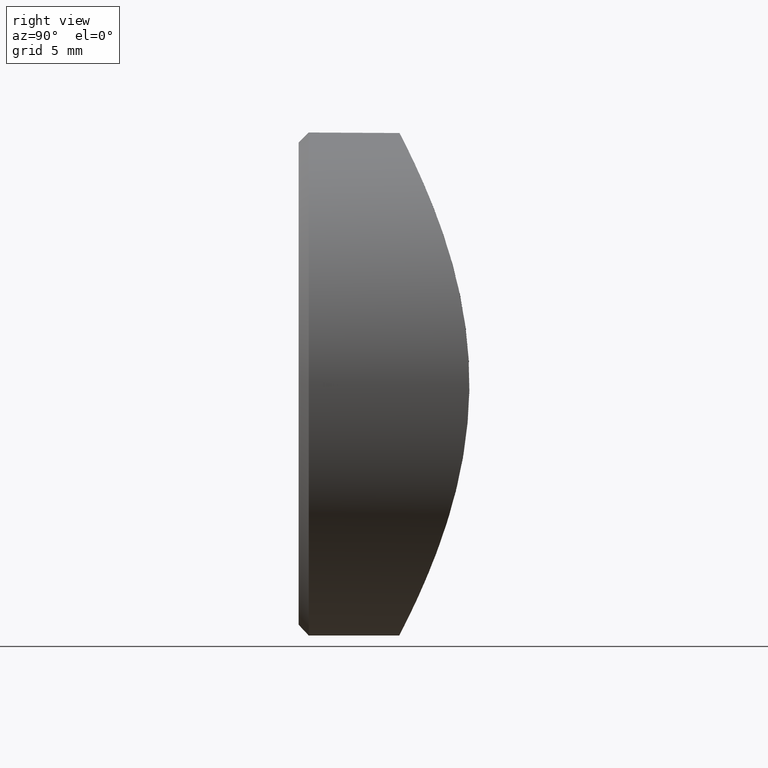
[diagram: clean part render]
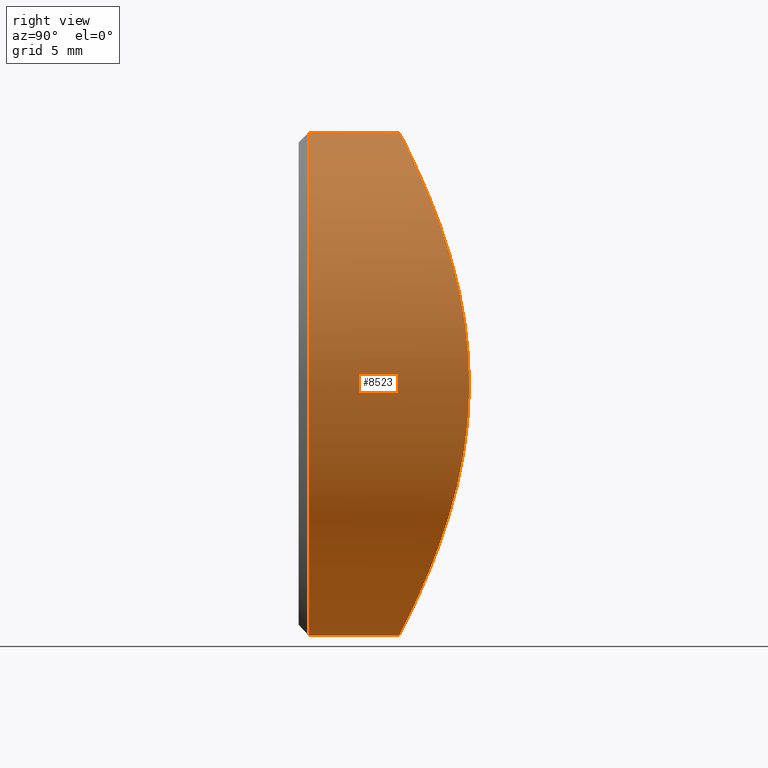
[diagram: same view with one face highlighted and labeled with its STEP entity id]
A machine part, right view. The second image highlights one B-rep face of the part: STEP entity #8523.
In plain terms, the highlighted cylindrical surface (bore or boss wall) has radius 12.5 mm, axis along (-0, -1, -0).
Its self-contained STEP definition (entity closure, byte-faithful):
#16 = CARTESIAN_POINT ( 'NONE',  ( -12.33897836552499427, 8.389917376965435380, -2.042544866178408469 ) ) ;
#370 = CARTESIAN_POINT ( 'NONE',  ( 12.07568711241505000, 8.235425785179563363, 3.255345404598887438 ) ) ;
#412 = CARTESIAN_POINT ( 'NONE',  ( 9.394847521644637212, 6.900573235167552610, -8.255202184159767143 ) ) ;
#452 = CARTESIAN_POINT ( 'NONE',  ( 2.880084786186519530, 5.168903019523318321, -12.17068015586779595 ) ) ;
#496 = CARTESIAN_POINT ( 'NONE',  ( 8.560607551957430061, 6.566139820617232559, -9.117340885081235413 ) ) ;
#766 = CARTESIAN_POINT ( 'NONE',  ( -11.83278988928865338, 8.094459033048021723, 4.109907718995606807 ) ) ;
#905 = CARTESIAN_POINT ( 'NONE',  ( -4.099037510848092758, 5.338037563784588713, -11.83695617156265989 ) ) ;
#993 = CARTESIAN_POINT ( 'NONE',  ( -11.85457163419842885, 8.106690732645331465, -4.048891219634841221 ) ) ;
#1145 = ORIENTED_EDGE ( 'NONE', *, *, #6163, .T. ) ;
#1285 = CARTESIAN_POINT ( 'NONE',  ( 0.8416139926660892723, 4.999999999999997335, -12.49999999999999822 ) ) ;
#1331 = CARTESIAN_POINT ( 'NONE',  ( 11.83531592272857402, 8.098469632034195342, 4.042869024516796195 ) ) ;
#1373 = AXIS2_PLACEMENT_3D ( 'NONE', #3110, #7761, #4872 ) ;
#1376 = CARTESIAN_POINT ( 'NONE',  ( 12.50105946675681068, 8.487328007451255374, 0.3829992845280627556 ) ) ;
#1424 = CARTESIAN_POINT ( 'NONE',  ( 12.16623829432023030, 8.288210147253527893, -2.898783021241126523 ) ) ;
#1797 = CARTESIAN_POINT ( 'NONE',  ( -0.4208069963330480223, 4.999999999999998224, -12.50000000000000533 ) ) ;
#1846 = CARTESIAN_POINT ( 'NONE',  ( -12.32893162694468181, 8.383935725384871418, 2.102821018098289585 ) ) ;
#1892 = CARTESIAN_POINT ( 'NONE',  ( -10.81973109692051693, 7.558276606120126750, -6.272818569617448325 ) ) ;
#1934 = CARTESIAN_POINT ( 'NONE',  ( -7.670003217709702170, 6.239676964406394966, -9.903237437807757004 ) ) ;
#2254 = CARTESIAN_POINT ( 'NONE',  ( 11.67831068887509893, 8.010663022005205747, -4.475638660923362266 ) ) ;
#2292 = CARTESIAN_POINT ( 'NONE',  ( 4.073928212782698566, 5.342718500147014993, -11.82477579534295842 ) ) ;
#2339 = CARTESIAN_POINT ( 'NONE',  ( 11.81847010116291941, 8.088992777373846366, -4.091992984200398809 ) ) ;
#2378 = CARTESIAN_POINT ( 'NONE',  ( 10.82438516625332703, 7.555926955366533804, -6.303536818163581579 ) ) ;
#2419 = CARTESIAN_POINT ( 'NONE',  ( 9.412192866964700144, 6.907903693207503082, 8.235475087461976429 ) ) ;
#2534 = CARTESIAN_POINT ( 'NONE',  ( -11.36069409278679920, 7.838285258480948592, 5.229597903835155215 ) ) ;
#2708 = FACE_OUTER_BOUND ( 'NONE', #3982, .T. ) ;
#2732 = DIRECTION ( 'NONE',  ( 0.000000000000000000, 0.000000000000000000, -1.000000000000000000 ) ) ;
#2782 = VERTEX_POINT ( 'NONE', #12098 ) ;
#2792 = CARTESIAN_POINT ( 'NONE',  ( -12.39229586063315303, 8.421856189825291494, 1.689128689021134111 ) ) ;
#2833 = CARTESIAN_POINT ( 'NONE',  ( -10.61159664689884430, 7.454884040471547735, -6.618618285412101621 ) ) ;
#2863 = CARTESIAN_POINT ( 'NONE',  ( 0.000000000000000000, 12.00000000000000000, 0.000000000000000000 ) ) ;
#2873 = CARTESIAN_POINT ( 'NONE',  ( -12.50113647660907645, 8.487374592744735935, -0.3784457863119105592 ) ) ;
#2913 = B_SPLINE_CURVE_WITH_KNOTS ( 'NONE', 3,
 ( #10902, #1285, #11966, #452, #10103, #2292, #4213, #9002, #7226, #5219, #4300, #8054, #496, #6186, #412, #3332, #11068, #2378, #8095, #2254, #2339, #12044, #1424, #9047, #3245, #1376, #11028, #7183, #8139, #11918, #370, #1331, #6269, #7137, #9089, #3376, #4340, #2419, #5303, #8963, #7266, #9972, #8013, #3205, #9928, #12007, #6104, #10060, #10945, #5129, #5259, #3291, #10019, #5176, #11869, #7092, #6231, #6147, #4256, #8176, #8793, #9250, #5633, #10725, #2534, #766, #2917, #1846, #2792, #10485, #4786, #2873, #8570, #5680, #16, #8704, #993, #8660, #12416, #1892, #2833, #8613, #12454, #9552, #5720, #10524, #1934, #4748, #11490, #3866, #6693, #905, #7771, #5810, #4831, #9676, #1797, #9591 ),
 .UNSPECIFIED., .T., .F.,
 ( 4, 2, 2, 2, 2, 2, 2, 2, 2, 2, 2, 2, 2, 2, 2, 2, 2, 2, 2, 2, 2, 2, 2, 2, 2, 2, 2, 2, 2, 2, 2, 2, 2, 2, 2, 2, 2, 2, 2, 2, 2, 2, 2, 2, 2, 2, 2, 2, 4 ),
 ( 0.000000000000000000, 0.002486133216992820159, 0.003729199825489230239, 0.004972266433985641186, 0.007458399650978464815, 0.008701466259474875328, 0.009944532867971284107, 0.01118759947646769462, 0.01243066608496410687, 0.01491679930195692963, 0.01615986591045334014, 0.01740293251894975413, 0.01988906573594257862, 0.02113213234443898914, 0.02237519895293539618, 0.02361826556143181363, 0.02486133216992822761, 0.02734746538692104864, 0.02859053199541746609, 0.02983359860391388008, 0.03231973182090670110, 0.03480586503789952213, 0.03604893164639592917, 0.03729199825489233622, 0.03977813147188516418, 0.04102119808038157817, 0.04226426468887798521, 0.04475039790587079930, 0.04723653112286362726, 0.04972266433985644829, 0.05220879755684926932, 0.05345186416534568330, 0.05469493077384208340, 0.05718106399083491137, 0.05842413059933132535, 0.05966719720782773240, 0.06091026381632414638, 0.06215333042482056036, 0.06463946364181337445, 0.06588253025030978149, 0.06712559685880618854, 0.06836866346730260946, 0.06961173007579901650, 0.07209786329279184447, 0.07334092990128825151, 0.07458399650978465856, 0.07707012972677748652, 0.07831319633527389357, 0.07955626294377031449 ),
 .UNSPECIFIED. ) ;
#2917 = CARTESIAN_POINT ( 'NONE',  ( -12.07716066025249901, 8.235827473606695648, 3.330140473100296816 ) ) ;
#3110 = CARTESIAN_POINT ( 'NONE',  ( 0.000000000000000000, 0.5000000000000091038, 0.000000000000000000 ) ) ;
#3205 = CARTESIAN_POINT ( 'NONE',  ( 4.493358900822062019, 5.418622160062162685, 11.67154270457320919 ) ) ;
#3245 = CARTESIAN_POINT ( 'NONE',  ( 12.49774924526883879, 8.485325542013120170, -0.8654298213824760388 ) ) ;
#3291 = CARTESIAN_POINT ( 'NONE',  ( -1.630651670391576991, 5.051473068477364770, 12.40031129654895814 ) ) ;
#3311 = FACE_OUTER_BOUND ( 'NONE', #3683, .T. ) ;
#3332 = CARTESIAN_POINT ( 'NONE',  ( 9.905737200678295551, 7.123277097359831167, -7.634650847773376547 ) ) ;
#3376 = CARTESIAN_POINT ( 'NONE',  ( 10.16551749499001112, 7.242316943920111605, 7.285275361540628047 ) ) ;
#3683 = EDGE_LOOP ( 'NONE', ( #1145 ) ) ;
#3866 = CARTESIAN_POINT ( 'NONE',  ( -5.595272729540675449, 5.654170961199794121, -11.18531521167290244 ) ) ;
#3982 = EDGE_LOOP ( 'NONE', ( #5458 ) ) ;
#4213 = CARTESIAN_POINT ( 'NONE',  ( 4.463086516404190185, 5.412866885085155566, -11.68324080886737981 ) ) ;
#4256 = CARTESIAN_POINT ( 'NONE',  ( -8.264077568507044447, 6.449786080185163861, 9.412695405477590427 ) ) ;
#4300 = CARTESIAN_POINT ( 'NONE',  ( 7.643601615584864284, 6.239174722017979846, -9.898850495652810721 ) ) ;
#4340 = CARTESIAN_POINT ( 'NONE',  ( 9.923142205795821624, 7.131111030546357199, 7.612074174934304160 ) ) ;
#4535 = CIRCLE ( 'NONE', #1373, 12.50000000000000000 ) ;
#4748 = CARTESIAN_POINT ( 'NONE',  ( -6.665751520387521722, 5.935508956533557701, -10.58210857748917277 ) ) ;
#4786 = CARTESIAN_POINT ( 'NONE',  ( -12.49876076068150610, 8.485937442637158767, 0.4501265013655099123 ) ) ;
#4831 = CARTESIAN_POINT ( 'NONE',  ( -1.676951933329633437, 5.054662766267060015, -12.39411511674444988 ) ) ;
#4872 = DIRECTION ( 'NONE',  ( 0.000000000000000000, 0.000000000000000000, 1.000000000000000000 ) ) ;
#5129 = CARTESIAN_POINT ( 'NONE',  ( -0.3758445865019366394, 4.999352973999016569, 12.50125005891698216 ) ) ;
#5176 = CARTESIAN_POINT ( 'NONE',  ( -3.260479979501064829, 5.207198239851062560, 12.09564845651103582 ) ) ;
#5219 = CARTESIAN_POINT ( 'NONE',  ( 7.317373504727926026, 6.132564767861670596, -10.14252889460935236 ) ) ;
#5259 = CARTESIAN_POINT ( 'NONE',  ( -0.7937935283653732021, 5.009413491511899075, 12.48185230467801610 ) ) ;
#5303 = CARTESIAN_POINT ( 'NONE',  ( 9.143358402556369668, 6.795727440652019169, 8.532821530365838569 ) ) ;
#5458 = ORIENTED_EDGE ( 'NONE', *, *, #6670, .T. ) ;
#5633 = CARTESIAN_POINT ( 'NONE',  ( -10.79939258952037306, 7.548087003693001229, 6.307741837057432299 ) ) ;
#5680 = CARTESIAN_POINT ( 'NONE',  ( -12.40093975770249735, 8.427031647108952583, -1.625193573246797030 ) ) ;
#5720 = CARTESIAN_POINT ( 'NONE',  ( -9.139284782924375961, 6.794035604485920921, -8.537292556855806680 ) ) ;
#5810 = CARTESIAN_POINT ( 'NONE',  ( -2.094311208364738608, 5.087493139575779644, -12.33032299215525818 ) ) ;
#6104 = CARTESIAN_POINT ( 'NONE',  ( 2.916893301379961834, 5.173294964805143614, 12.16203323285879989 ) ) ;
#6147 = CARTESIAN_POINT ( 'NONE',  ( -7.632636067880913089, 6.227161144243667401, 9.932055065716138387 ) ) ;
#6163 = EDGE_CURVE ( 'NONE', #2782, #2782, #4535, .T. ) ;
#6186 = CARTESIAN_POINT ( 'NONE',  ( 9.125846458580161524, 6.788567383216227213, -8.551539796307121577 ) ) ;
#6231 = CARTESIAN_POINT ( 'NONE',  ( -6.290458467577770385, 5.823109791072275776, 10.83203505537225197 ) ) ;
#6269 = CARTESIAN_POINT ( 'NONE',  ( 11.69463221032094857, 8.019683490822727023, 4.433206286189500744 ) ) ;
#6670 = EDGE_CURVE ( 'NONE', #8622, #8622, #2913, .T. ) ;
#6693 = CARTESIAN_POINT ( 'NONE',  ( -5.226925829154954961, 5.569307956056904096, -11.36202694756624432 ) ) ;
#7092 = CARTESIAN_POINT ( 'NONE',  ( -5.575696691962561680, 5.639556542823452645, 11.21809945721803814 ) ) ;
#7137 = CARTESIAN_POINT ( 'NONE',  ( 11.22171516179564321, 7.762517631140662289, 5.567231885764327259 ) ) ;
#7183 = CARTESIAN_POINT ( 'NONE',  ( 12.39939560149940156, 8.426106614345844292, 1.636956017459163748 ) ) ;
#7226 = CARTESIAN_POINT ( 'NONE',  ( 6.306957372526910355, 5.827480680796154999, -10.82273894371697409 ) ) ;
#7266 = CARTESIAN_POINT ( 'NONE',  ( 7.679687139352857628, 6.242732285119616975, 9.896326891067067422 ) ) ;
#7761 = DIRECTION ( 'NONE',  ( -0.000000000000000000, 1.000000000000000000, -0.000000000000000000 ) ) ;
#7771 = CARTESIAN_POINT ( 'NONE',  ( -3.316877259944496892, 5.214830716616150497, -12.08057711187187344 ) ) ;
#8013 = CARTESIAN_POINT ( 'NONE',  ( 5.616393516081349624, 5.649725587847339803, 11.19673421751230435 ) ) ;
#8054 = CARTESIAN_POINT ( 'NONE',  ( 8.264370655871719151, 6.455711329976480783, -9.386802674788903289 ) ) ;
#8095 = CARTESIAN_POINT ( 'NONE',  ( 11.20659804588977693, 7.754610452288820177, -5.596363829670500500 ) ) ;
#8139 = CARTESIAN_POINT ( 'NONE',  ( 12.33814508041329461, 8.389424442378361491, 2.047052564725868162 ) ) ;
#8176 = CARTESIAN_POINT ( 'NONE',  ( -9.399704287991015761, 6.896005990789429774, 8.278850895681333810 ) ) ;
#8523 = ADVANCED_FACE ( 'NONE', ( #3311, #2708 ), #10078, .T. ) ;
#8560 = DIRECTION ( 'NONE',  ( -0.000000000000000000, -1.000000000000000000, -0.000000000000000000 ) ) ;
#8570 = CARTESIAN_POINT ( 'NONE',  ( -12.48178325670625632, 8.475624290883709833, -0.7935034702485573854 ) ) ;
#8613 = CARTESIAN_POINT ( 'NONE',  ( -10.16369364889730242, 7.241477199381390228, -7.287758421890153215 ) ) ;
#8622 = VERTEX_POINT ( 'NONE', #10287 ) ;
#8660 = CARTESIAN_POINT ( 'NONE',  ( -11.38086847299331339, 7.849046002857148707, -5.185983993912958390 ) ) ;
#8704 = CARTESIAN_POINT ( 'NONE',  ( -12.09488317661416090, 8.246125444680881600, -3.263940484297838562 ) ) ;
#8793 = CARTESIAN_POINT ( 'NONE',  ( -9.909193422454764644, 7.120910015980596697, 7.662299098335446423 ) ) ;
#8963 = CARTESIAN_POINT ( 'NONE',  ( 8.296859981971218545, 6.461839374236833855, 9.383618653070685767 ) ) ;
#9002 = CARTESIAN_POINT ( 'NONE',  ( 5.594287980704875984, 5.644278120820803046, -11.20816533570559592 ) ) ;
#9047 = CARTESIAN_POINT ( 'NONE',  ( 12.41328738822395827, 8.433597884895217334, -1.685670540479236035 ) ) ;
#9089 = CARTESIAN_POINT ( 'NONE',  ( 10.83888041841364469, 7.563234087021744934, 6.278582914400735682 ) ) ;
#9250 = CARTESIAN_POINT ( 'NONE',  ( -10.58722758480829285, 7.442956972001327998, 6.657615752389715702 ) ) ;
#9552 = CARTESIAN_POINT ( 'NONE',  ( -9.411987761562489396, 6.907810120690276889, -8.235748521031606373 ) ) ;
#9591 = CARTESIAN_POINT ( 'NONE',  ( -2.710505431213761085E-16, 4.999999999999998224, -12.50000000000000355 ) ) ;
#9676 = CARTESIAN_POINT ( 'NONE',  ( -0.8415633137906197714, 5.011043614462188600, -12.47870299761530788 ) ) ;
#9928 = CARTESIAN_POINT ( 'NONE',  ( 4.109752741455176661, 5.348929718001922851, 11.81226899662651242 ) ) ;
#9972 = CARTESIAN_POINT ( 'NONE',  ( 6.328959426137782174, 5.833379719568177357, 10.81014121441068454 ) ) ;
#10019 = CARTESIAN_POINT ( 'NONE',  ( -2.042669042519713152, 5.083082880469271814, 12.33891662597604189 ) ) ;
#10060 = CARTESIAN_POINT ( 'NONE',  ( 1.693364542386430305, 5.045485484414276911, 12.41272702035197284 ) ) ;
#10078 = CYLINDRICAL_SURFACE ( 'NONE', #10593, 12.50000000000000000 ) ;
#10103 = CARTESIAN_POINT ( 'NONE',  ( 3.280682860040507354, 5.220506410122561114, -12.06894086756878259 ) ) ;
#10287 = CARTESIAN_POINT ( 'NONE',  ( 0.000000000000000000, 4.999999999999997335, -12.50000000000000000 ) ) ;
#10485 = CARTESIAN_POINT ( 'NONE',  ( -12.47702995727797415, 8.472750038800189287, 0.8636410543319767985 ) ) ;
#10524 = CARTESIAN_POINT ( 'NONE',  ( -8.287351939170417126, 6.458261868603522693, -9.392409702269306493 ) ) ;
#10593 = AXIS2_PLACEMENT_3D ( 'NONE', #2863, #8560, #2732 ) ;
#10725 = CARTESIAN_POINT ( 'NONE',  ( -11.18556598586050832, 7.745499562508698865, 5.594425883101202146 ) ) ;
#10902 = CARTESIAN_POINT ( 'NONE',  ( -2.710505431213761085E-16, 4.999999999999998224, -12.50000000000000355 ) ) ;
#10945 = CARTESIAN_POINT ( 'NONE',  ( 0.8701867918572666616, 5.001390958110060403, 12.49731265922301837 ) ) ;
#11028 = CARTESIAN_POINT ( 'NONE',  ( 12.48103956478301590, 8.475174251646912182, 0.8051631312347453662 ) ) ;
#11068 = CARTESIAN_POINT ( 'NONE',  ( 10.14872829841706547, 7.234525669153281768, -7.308644647692617902 ) ) ;
#11490 = CARTESIAN_POINT ( 'NONE',  ( -6.316747293375146732, 5.837776537401964561, -10.79430669075418692 ) ) ;
#11869 = CARTESIAN_POINT ( 'NONE',  ( -4.048937038016217294, 5.329096280450686507, 11.85496764630669020 ) ) ;
#11918 = CARTESIAN_POINT ( 'NONE',  ( 12.17629244726874660, 8.294084202614602219, 2.856247619983874664 ) ) ;
#11966 = CARTESIAN_POINT ( 'NONE',  ( 1.666427008392847853, 5.043836388253277292, -12.41589289394554996 ) ) ;
#12007 = CARTESIAN_POINT ( 'NONE',  ( 3.322960808794961363, 5.226393548887261709, 12.05726743121238620 ) ) ;
#12044 = CARTESIAN_POINT ( 'NONE',  ( 12.06284593198464350, 8.228001797514792770, -3.302785208884866375 ) ) ;
#12098 = CARTESIAN_POINT ( 'NONE',  ( 0.000000000000000000, 0.5000000000000091038, 12.50000000000000000 ) ) ;
#12416 = CARTESIAN_POINT ( 'NONE',  ( -11.20397708090772859, 7.755140858187857589, -5.557493264728322835 ) ) ;
#12454 = CARTESIAN_POINT ( 'NONE',  ( -9.923924471011337900, 7.131456738813705343, -7.611096531981374369 ) ) ;